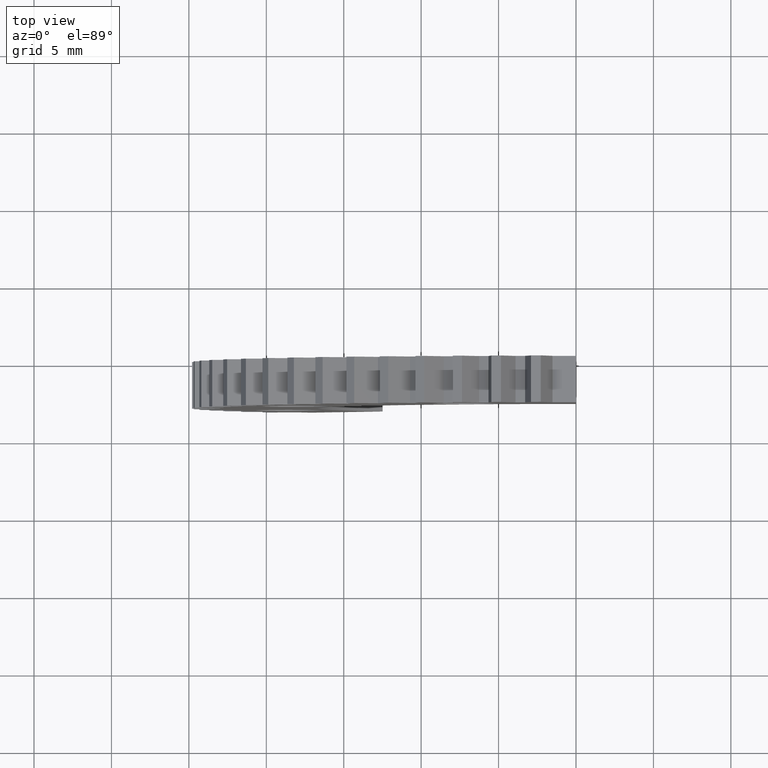
[diagram: clean part render]
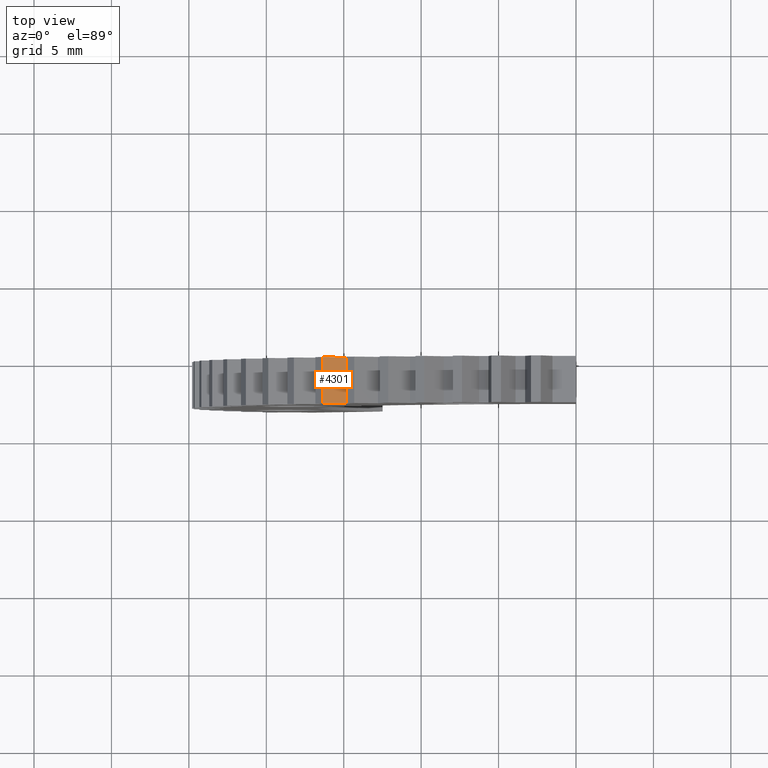
[diagram: same view with one face highlighted and labeled with its STEP entity id]
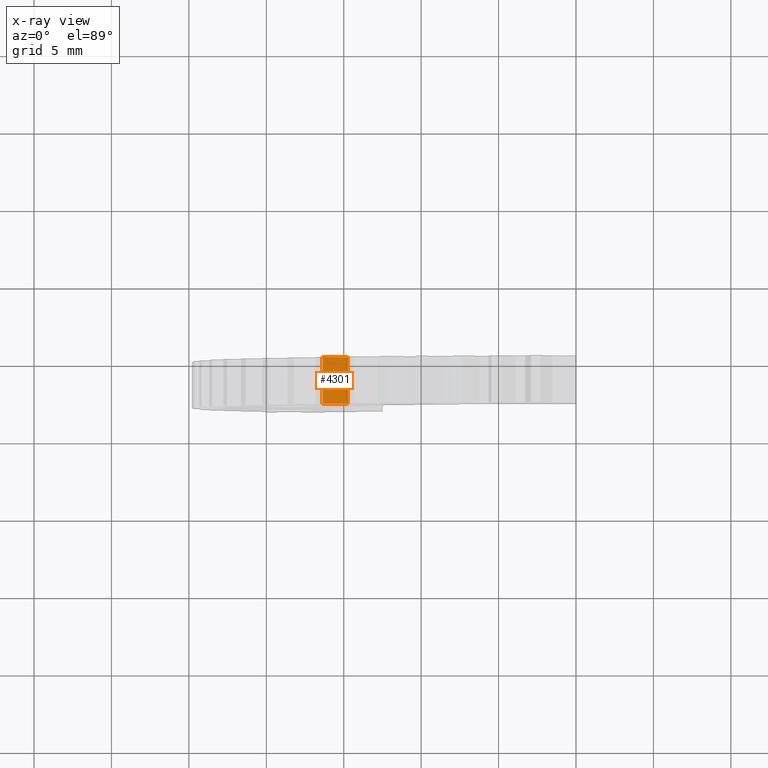
[diagram: x-ray of the same camera — body ghosted, the highlighted face saturated]
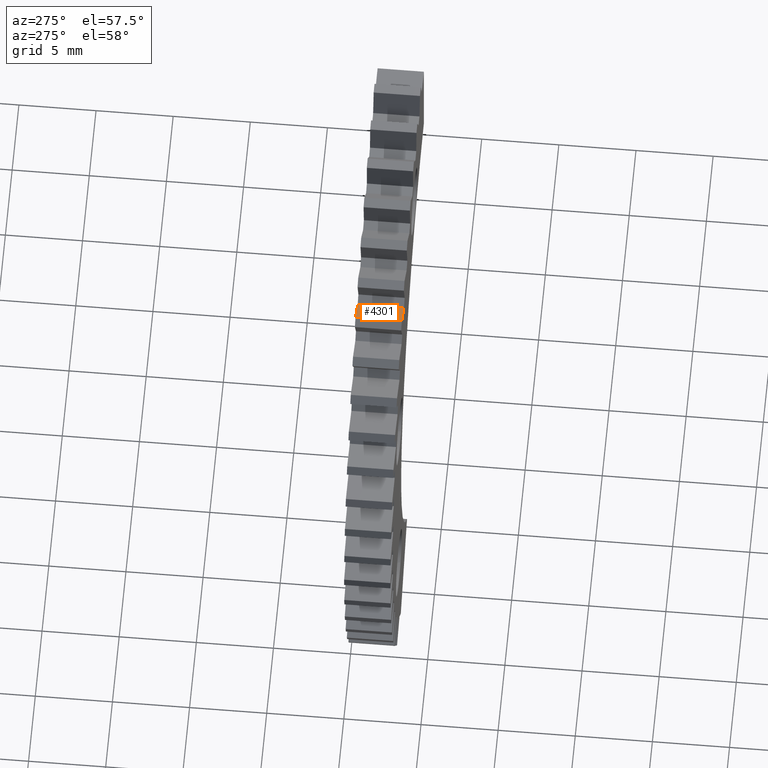
[diagram: same view with one face highlighted and labeled with its STEP entity id]
A machine part, top view. The second image highlights one B-rep face of the part: STEP entity #4301.
The next image is the same camera in x-ray: the body ghosted, the highlighted face saturated — about 0% of this face is hidden behind the body in this view.
A second angle (auxiliary view) of the same face is appended — the face is thin or edge-on in the first view.
In plain terms, the highlighted face is a freeform B-spline surface patch.
Its self-contained STEP definition (entity closure, byte-faithful):
#1728=CARTESIAN_POINT('',(-16.359007999999950,0.0,-1.160725000000000));
#1729=VERTEX_POINT('',#1728);
#1743=CARTESIAN_POINT('',(-14.717812237958720,0.0,-2.125554088541180));
#1744=VERTEX_POINT('',#1743);
#1745=CARTESIAN_POINT('',(-14.717812237958720,0.0,-2.125554088541180));
#1746=CARTESIAN_POINT('',(-16.359007999999950,0.0,-1.160725000000000));
#1747=QUASI_UNIFORM_CURVE('',1,(#1745,#1746),.UNSPECIFIED.,.F.,.U.);
#1748=EDGE_CURVE('',#1744,#1729,#1747,.T.);
#2374=CARTESIAN_POINT('',(-14.717812237958720,-3.0,-2.125554088541180));
#2375=VERTEX_POINT('',#2374);
#2389=CARTESIAN_POINT('',(-16.359007999999950,-3.0,-1.160725000000000));
#2390=VERTEX_POINT('',#2389);
#2391=CARTESIAN_POINT('',(-14.717812237958720,-3.0,-2.125554088541180));
#2392=CARTESIAN_POINT('',(-16.359007999999950,-3.0,-1.160725000000000));
#2393=QUASI_UNIFORM_CURVE('',1,(#2391,#2392),.UNSPECIFIED.,.F.,.U.);
#2394=EDGE_CURVE('',#2375,#2390,#2393,.T.);
#4278=CARTESIAN_POINT('',(-16.359007999999950,-3.0,-1.160725000000000));
#4279=CARTESIAN_POINT('',(-16.359007999999950,0.0,-1.160725000000000));
#4280=QUASI_UNIFORM_CURVE('',1,(#4278,#4279),.UNSPECIFIED.,.F.,.U.);
#4281=EDGE_CURVE('',#2390,#1729,#4280,.T.);
#4286=CARTESIAN_POINT('',(-14.635837551146899,-3.149849994185418,-2.173752006014231));
#4287=CARTESIAN_POINT('',(-16.440986239468121,-3.149849994185418,-1.112531177652316));
#4288=CARTESIAN_POINT('',(-14.635837551146899,0.149850074651688,-2.173752006014231));
#4289=CARTESIAN_POINT('',(-16.440986239468121,0.149850074651688,-1.112531177652316));
#4290=B_SPLINE_SURFACE_WITH_KNOTS('',1,1,((#4286,#4288),(#4287,#4289)),.UNSPECIFIED.,.F.,.F.,.U.,(2,2),(2,2),(0.0,2.093979807327902),(0.0,3.299700068837106),.UNSPECIFIED.);
#4291=ORIENTED_EDGE('',*,*,#1748,.T.);
#4292=ORIENTED_EDGE('',*,*,#4281,.F.);
#4293=ORIENTED_EDGE('',*,*,#2394,.F.);
#4294=CARTESIAN_POINT('',(-14.717812237958720,-3.0,-2.125554088541180));
#4295=CARTESIAN_POINT('',(-14.717812237958720,0.0,-2.125554088541180));
#4296=QUASI_UNIFORM_CURVE('',1,(#4294,#4295),.UNSPECIFIED.,.F.,.U.);
#4297=EDGE_CURVE('',#2375,#1744,#4296,.T.);
#4298=ORIENTED_EDGE('',*,*,#4297,.T.);
#4299=EDGE_LOOP('',(#4291,#4292,#4293,#4298));
#4300=FACE_OUTER_BOUND('',#4299,.T.);
#4301=ADVANCED_FACE('',(#4300),#4290,.F.);